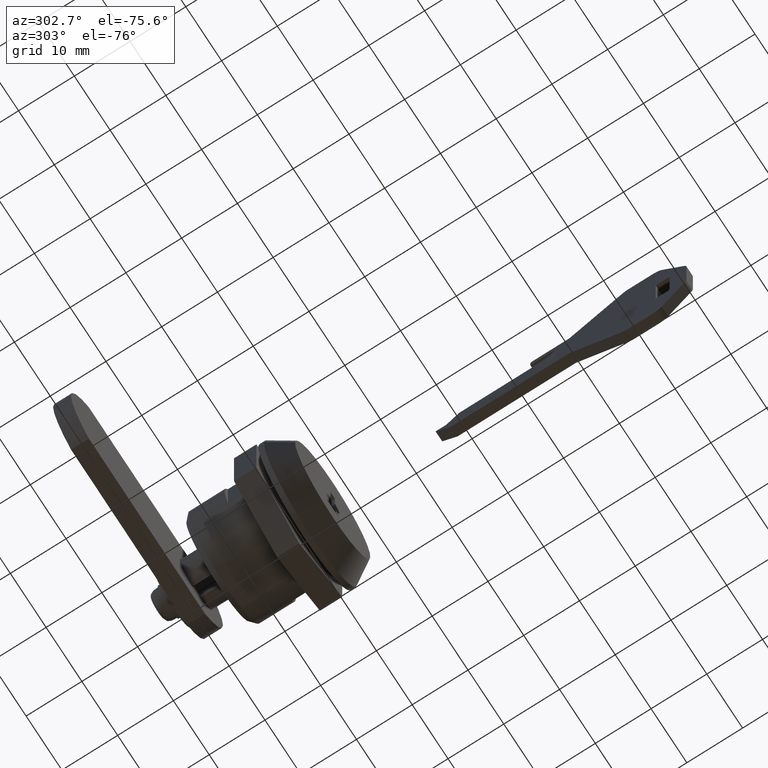
[diagram: clean part render]
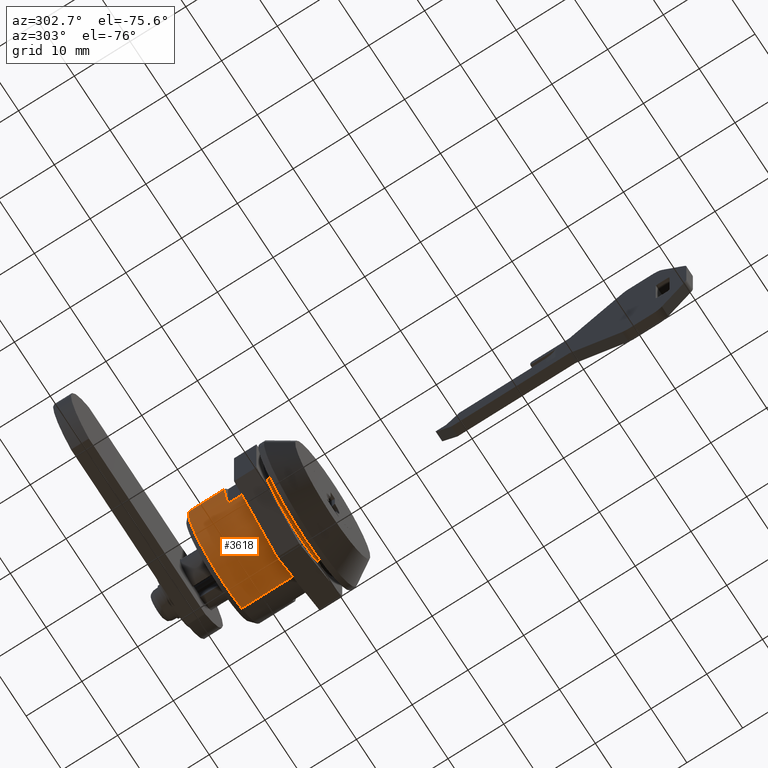
[diagram: same view with one face highlighted and labeled with its STEP entity id]
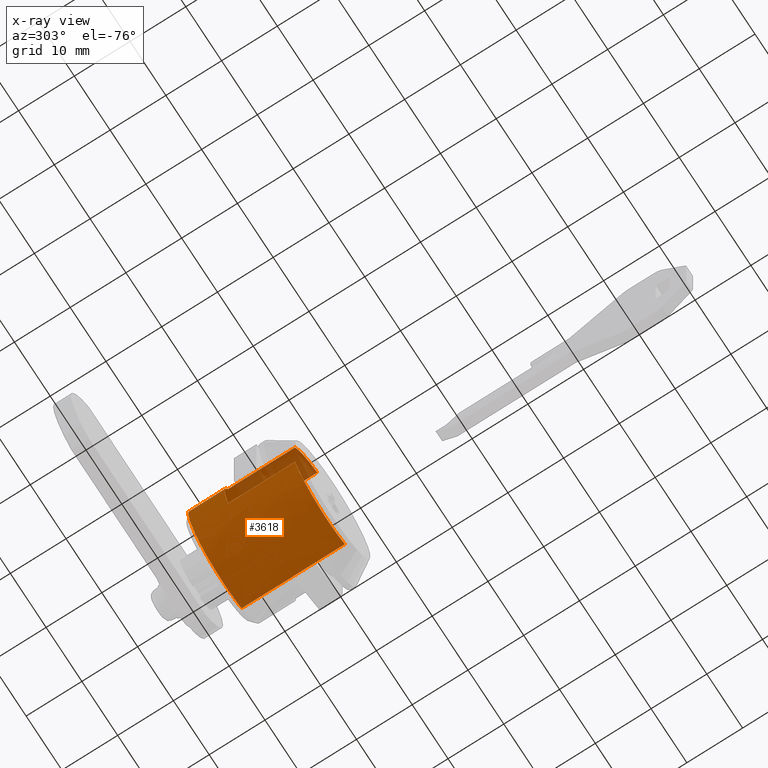
[diagram: x-ray of the same camera — body ghosted, the highlighted face saturated]
A machine part, auxiliary view. The second image highlights one B-rep face of the part: STEP entity #3618.
The next image is the same camera in x-ray: the body ghosted, the highlighted face saturated — about 6% of this face is hidden behind the body in this view.
In plain terms, the highlighted face is a freeform B-spline surface patch.
Its self-contained STEP definition (entity closure, byte-faithful):
#3320=CARTESIAN_POINT('',(14.499999999955030,9.978260758618088,-0.659023697541886));
#3321=VERTEX_POINT('',#3320);
#3322=CARTESIAN_POINT('',(14.500000000000000,0.0,-10.0));
#3323=VERTEX_POINT('',#3322);
#3324=CARTESIAN_POINT('',(14.499999999955024,9.978260758618088,-0.659023697541886));
#3325=CARTESIAN_POINT('',(14.499999999999996,9.361327117168715,-9.999999999999998));
#3326=CARTESIAN_POINT('',(14.500000000000000,0.0,-10.0));
#3334=(BOUNDED_CURVE()B_SPLINE_CURVE(2,(#3324,#3325,#3326),.UNSPECIFIED.,.F.,.U.)B_SPLINE_CURVE_WITH_KNOTS((3,3),(0.261505472938540,0.500000000000000),.UNSPECIFIED.)CURVE()GEOMETRIC_REPRESENTATION_ITEM()RATIONAL_B_SPLINE_CURVE((0.974281704157363,0.720586281198308,1.0))REPRESENTATION_ITEM(''));
#3335=EDGE_CURVE('',#3321,#3323,#3334,.T.);
#3383=CARTESIAN_POINT('',(14.500000000000011,-4.924224062057997,-8.703563487817689));
#3384=VERTEX_POINT('',#3383);
#3400=CARTESIAN_POINT('',(14.500000000000000,0.0,-10.0));
#3401=CARTESIAN_POINT('',(14.500000000000009,-2.632773196010287,-10.0));
#3402=CARTESIAN_POINT('',(14.500000000000007,-4.924224062057997,-8.703563487817689));
#3410=(BOUNDED_CURVE()B_SPLINE_CURVE(2,(#3400,#3401,#3402),.UNSPECIFIED.,.F.,.U.)B_SPLINE_CURVE_WITH_KNOTS((3,3),(0.500000000000000,0.583929790508224),.UNSPECIFIED.)CURVE()GEOMETRIC_REPRESENTATION_ITEM()RATIONAL_B_SPLINE_CURVE((1.0,0.901670134014831,0.869362708452357))REPRESENTATION_ITEM(''));
#3411=EDGE_CURVE('',#3323,#3384,#3410,.T.);
#3438=CARTESIAN_POINT('',(14.499999999999851,2.749878633727665,9.614476974833583));
#3439=VERTEX_POINT('',#3438);
#3440=CARTESIAN_POINT('',(14.499999999999847,2.749878633727664,9.614476974833583));
#3441=CARTESIAN_POINT('',(14.500000000000005,10.0,7.540838035435288));
#3442=CARTESIAN_POINT('',(14.500000000000000,10.0,0.0));
#3443=CARTESIAN_POINT('',(14.500000000000000,9.999999999999998,-0.329870405559615));
#3444=CARTESIAN_POINT('',(14.499999999955033,9.978260758618088,-0.659023697541886));
#3452=(BOUNDED_CURVE()B_SPLINE_CURVE(2,(#3440,#3441,#3442,#3443,#3444),.UNSPECIFIED.,.F.,.U.)B_SPLINE_CURVE_WITH_KNOTS((3,2,3),(0.046846472105109,0.250000000000000,0.261505472938540),.UNSPECIFIED.)CURVE()GEOMETRIC_REPRESENTATION_ITEM()RATIONAL_B_SPLINE_CURVE((0.910800883155369,0.761990837206228,1.0,0.986520499988240,0.974281704157363))REPRESENTATION_ITEM(''));
#3453=EDGE_CURVE('',#3439,#3321,#3452,.T.);
#3518=CARTESIAN_POINT('',(14.962500000000000,2.749890905392589,9.614473464960993));
#3519=CARTESIAN_POINT('',(14.962500000000006,3.891126010676016,9.288062242508639));
#3520=CARTESIAN_POINT('',(14.962500000000000,4.924235601034670,8.703556959398995));
#3521=CARTESIAN_POINT('',(14.962500000000002,13.627792560433665,3.779321358364326));
#3522=CARTESIAN_POINT('',(14.962500000000000,8.703556959398995,-4.924235601034670));
#3523=CARTESIAN_POINT('',(14.962500000000002,3.779321358364326,-13.627792560433665));
#3524=CARTESIAN_POINT('',(14.962500000000000,-4.924235601034670,-8.703556959398995));
#3525=CARTESIAN_POINT('',(-4.474062499999914,2.749890905392589,9.614473464960993));
#3526=CARTESIAN_POINT('',(-4.474062499999914,3.891126010676016,9.288062242508639));
#3527=CARTESIAN_POINT('',(-4.474062499999914,4.924235601034670,8.703556959398995));
#3528=CARTESIAN_POINT('',(-4.474062499999914,13.627792560433665,3.779321358364326));
#3529=CARTESIAN_POINT('',(-4.474062499999914,8.703556959398995,-4.924235601034670));
#3530=CARTESIAN_POINT('',(-4.474062499999914,3.779321358364326,-13.627792560433665));
#3531=CARTESIAN_POINT('',(-4.474062499999914,-4.924235601034670,-8.703556959398995));
#3539=(BOUNDED_SURFACE()B_SPLINE_SURFACE(2,1,((#3518,#3525),(#3519,#3526),(#3520,#3527),(#3521,#3528),(#3522,#3529),(#3523,#3530),(#3524,#3531)),.UNSPECIFIED.,.F.,.F.,.U.)B_SPLINE_SURFACE_WITH_KNOTS((3,2,2,3),(2,2),(0.0,2.650966799187807,19.219509294111610,35.788051789035407),(0.0,19.436562499999919),.UNSPECIFIED.)GEOMETRIC_REPRESENTATION_ITEM()RATIONAL_B_SPLINE_SURFACE(((0.921270302782944,0.921270302782944),(0.953137084989848,0.953137084989848),(1.0,1.0),(0.707106781186548,0.707106781186548),(1.0,1.0),(0.707106781186548,0.707106781186548),(1.0,1.0)))REPRESENTATION_ITEM('')SURFACE());
#3540=ORIENTED_EDGE('',*,*,#3453,.T.);
#3541=ORIENTED_EDGE('',*,*,#3335,.T.);
#3542=ORIENTED_EDGE('',*,*,#3411,.T.);
#3543=CARTESIAN_POINT('',(-3.999999999999895,-4.924234035341394,-8.703557845225259));
#3544=VERTEX_POINT('',#3543);
#3545=CARTESIAN_POINT('',(14.500000000000011,-4.924224062057997,-8.703563487817689));
#3546=CARTESIAN_POINT('',(-3.999999999999895,-4.924234035341394,-8.703557845225259));
#3547=QUASI_UNIFORM_CURVE('',1,(#3545,#3546),.UNSPECIFIED.,.F.,.U.);
#3548=EDGE_CURVE('',#3384,#3544,#3547,.T.);
#3549=ORIENTED_EDGE('',*,*,#3548,.T.);
#3550=CARTESIAN_POINT('',(-3.999999999999895,9.0,-4.358898943540674));
#3551=VERTEX_POINT('',#3550);
#3552=CARTESIAN_POINT('',(-3.999999999999895,9.0,-4.358898943540675));
#3553=CARTESIAN_POINT('',(-3.999999999999895,6.267890062732585,-10.0));
#3554=CARTESIAN_POINT('',(-3.999999999999895,0.0,-10.0));
#3555=CARTESIAN_POINT('',(-3.999999999999895,-2.632779322570715,-9.999999999999998));
#3556=CARTESIAN_POINT('',(-3.999999999999895,-4.924234035341394,-8.703557845225259));
#3564=(BOUNDED_CURVE()B_SPLINE_CURVE(2,(#3552,#3553,#3554,#3555,#3556),.UNSPECIFIED.,.F.,.U.)B_SPLINE_CURVE_WITH_KNOTS((3,2,3),(0.0,0.500000000000000,0.730425360065468),.UNSPECIFIED.)CURVE()GEOMETRIC_REPRESENTATION_ITEM()RATIONAL_B_SPLINE_CURVE((1.0,0.847316320612930,1.0,0.929635616402228,0.924126186509661))REPRESENTATION_ITEM(''));
#3565=EDGE_CURVE('',#3551,#3544,#3564,.T.);
#3566=ORIENTED_EDGE('',*,*,#3565,.F.);
#3567=CARTESIAN_POINT('',(8.0,9.0,-4.358898943540690));
#3568=VERTEX_POINT('',#3567);
#3569=CARTESIAN_POINT('',(8.0,9.0,-4.358898943540690));
#3570=CARTESIAN_POINT('',(-3.999999999999895,9.0,-4.358898943540674));
#3571=QUASI_UNIFORM_CURVE('',1,(#3569,#3570),.UNSPECIFIED.,.F.,.U.);
#3572=EDGE_CURVE('',#3568,#3551,#3571,.T.);
#3573=ORIENTED_EDGE('',*,*,#3572,.F.);
#3574=CARTESIAN_POINT('',(8.0,9.0,4.358898943540690));
#3575=VERTEX_POINT('',#3574);
#3576=CARTESIAN_POINT('',(8.0,8.999999999999991,4.358898943540694));
#3577=CARTESIAN_POINT('',(8.0,11.111111111111120,6.938894E-015));
#3578=CARTESIAN_POINT('',(8.0,8.999999999999996,-4.358898943540683));
#3586=(BOUNDED_CURVE()B_SPLINE_CURVE(2,(#3576,#3577,#3578),.UNSPECIFIED.,.F.,.U.)CURVE()GEOMETRIC_REPRESENTATION_ITEM()QUASI_UNIFORM_CURVE()RATIONAL_B_SPLINE_CURVE((1.0,0.899999999999999,1.0))REPRESENTATION_ITEM(''));
#3587=EDGE_CURVE('',#3575,#3568,#3586,.T.);
#3588=ORIENTED_EDGE('',*,*,#3587,.F.);
#3589=CARTESIAN_POINT('',(-3.999999999999915,9.0,4.358898943540690));
#3590=VERTEX_POINT('',#3589);
#3591=CARTESIAN_POINT('',(-3.999999999999915,9.0,4.358898943540690));
#3592=CARTESIAN_POINT('',(8.0,9.0,4.358898943540690));
#3593=QUASI_UNIFORM_CURVE('',1,(#3591,#3592),.UNSPECIFIED.,.F.,.U.);
#3594=EDGE_CURVE('',#3590,#3575,#3593,.T.);
#3595=ORIENTED_EDGE('',*,*,#3594,.F.);
#3596=CARTESIAN_POINT('',(-3.999999999999897,2.749878551173825,9.614476998445053));
#3597=VERTEX_POINT('',#3596);
#3598=CARTESIAN_POINT('',(-3.999999999999896,2.749878551173825,9.614476998445053));
#3599=CARTESIAN_POINT('',(-3.999999999999901,7.050317411241672,8.384489700772493));
#3600=CARTESIAN_POINT('',(-3.999999999999915,9.0,4.358898943540690));
#3608=(BOUNDED_CURVE()B_SPLINE_CURVE(2,(#3598,#3599,#3600),.UNSPECIFIED.,.F.,.U.)B_SPLINE_CURVE_WITH_KNOTS((3,3),(0.626875866302575,1.0),.UNSPECIFIED.)CURVE()GEOMETRIC_REPRESENTATION_ITEM()RATIONAL_B_SPLINE_CURVE((0.942175090089126,0.886060068797928,1.0))REPRESENTATION_ITEM(''));
#3609=EDGE_CURVE('',#3597,#3590,#3608,.T.);
#3610=ORIENTED_EDGE('',*,*,#3609,.F.);
#3611=CARTESIAN_POINT('',(14.499999999999851,2.749878633727665,9.614476974833583));
#3612=CARTESIAN_POINT('',(-3.999999999999897,2.749878551173825,9.614476998445053));
#3613=QUASI_UNIFORM_CURVE('',1,(#3611,#3612),.UNSPECIFIED.,.F.,.U.);
#3614=EDGE_CURVE('',#3439,#3597,#3613,.T.);
#3615=ORIENTED_EDGE('',*,*,#3614,.F.);
#3616=EDGE_LOOP('',(#3540,#3541,#3542,#3549,#3566,#3573,#3588,#3595,#3610,#3615));
#3617=FACE_OUTER_BOUND('',#3616,.T.);
#3618=ADVANCED_FACE('',(#3617),#3539,.T.);